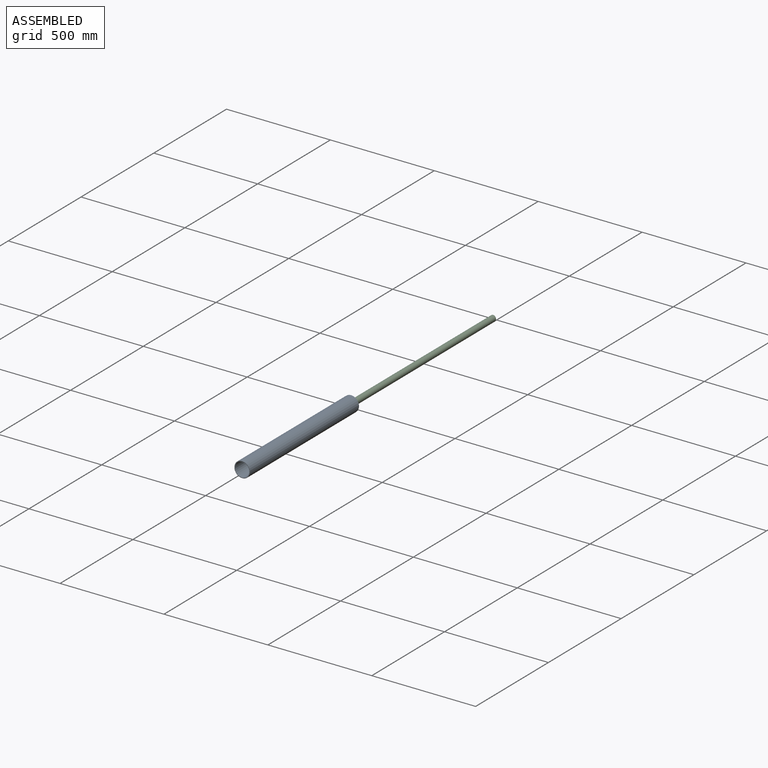
[diagram: assembled view]
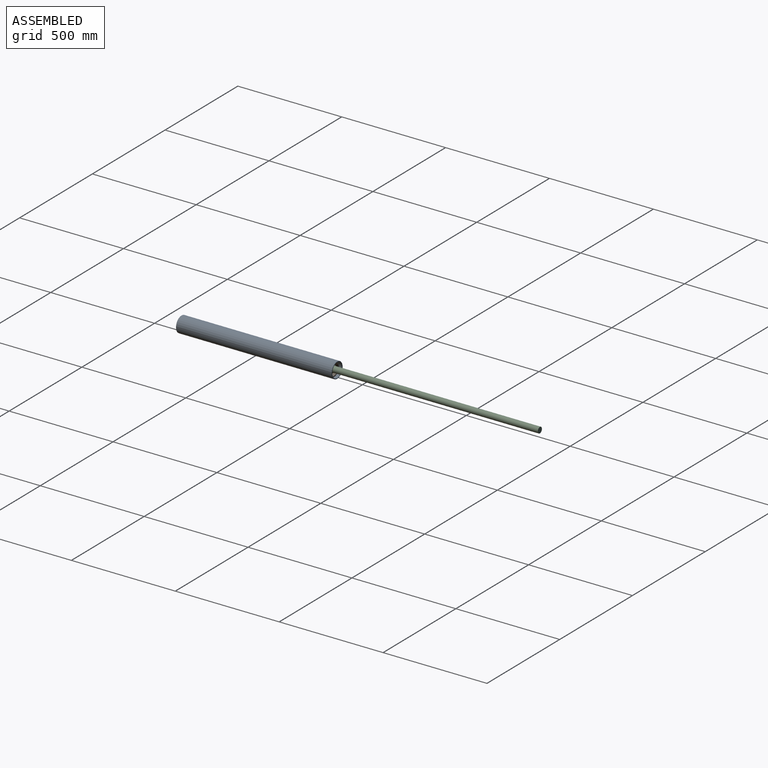
[diagram: assembled view, second angle]
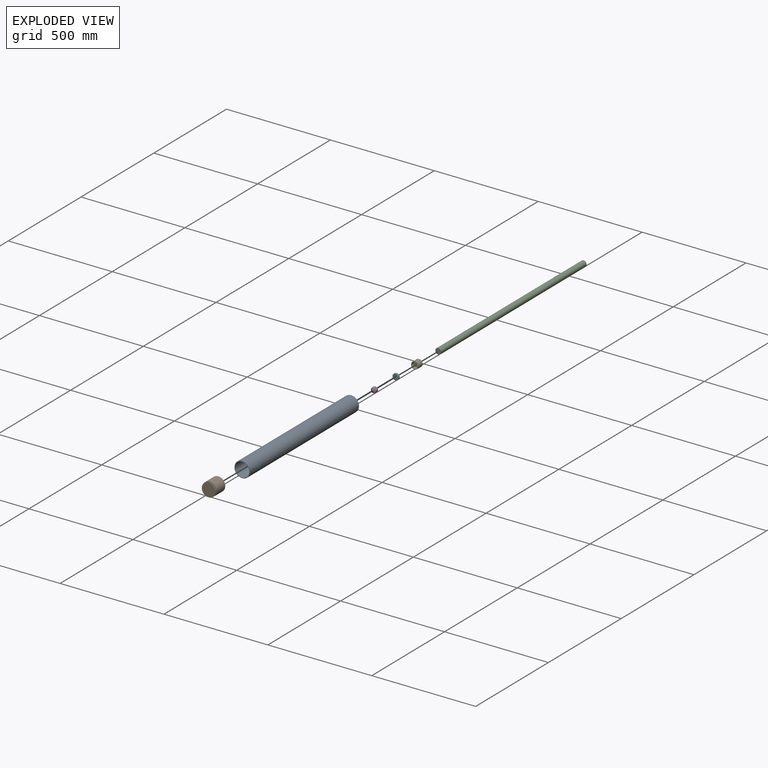
[diagram: exploded view]
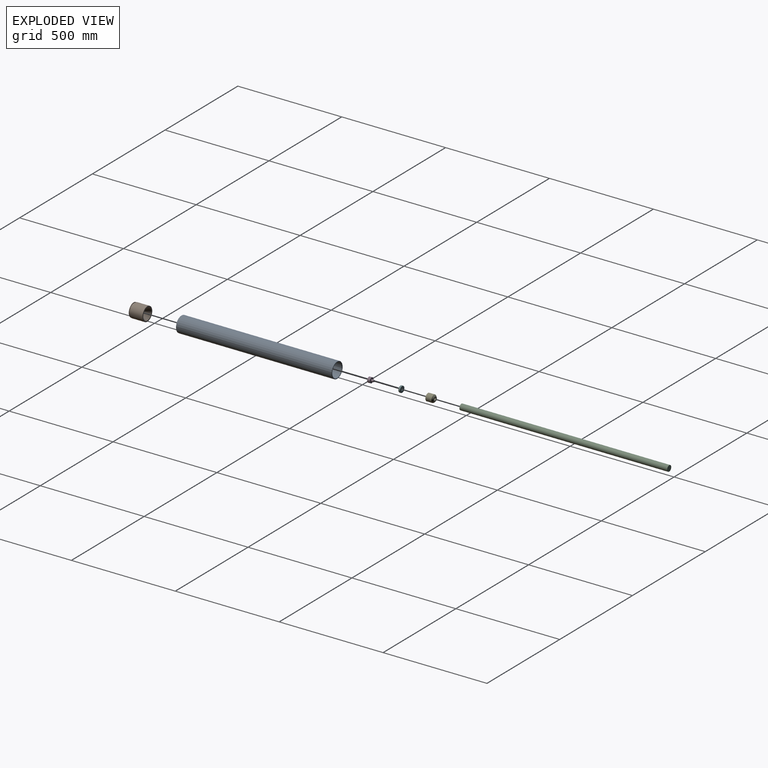
[diagram: exploded view, second angle]
ASSEMBLY  parts=6 mates=8
PART A: 8 faces, bbox 75.3x750x75.3 mm
  f0: cylinder r=33.7mm len=744mm, axis (0,1,0), area 157537mm2, adj f4,f5
  f1: cylinder r=37.65mm len=749mm, axis (0,1,0), area 177184.9mm2, adj f6,f7
  f2: plane 74.3x74.3mm, normal (0,-1,0), area 595.7mm2, adj f5,f7
  f3: plane 74.3x74.3mm, normal (0,1,0), area 595.7mm2, adj f4,f6
  f4: cone r=34.5mm half-angle=15deg, axis (0,1,0), area 665.5mm2, adj f0,f3
  f5: cone r=33.7mm half-angle=15deg, axis (0,-1,0), area 665.5mm2, adj f0,f2
  f6: cone r=37.65mm half-angle=45deg, axis (0,-1,0), area 166.2mm2, adj f1,f3
  f7: cone r=37.15mm half-angle=45deg, axis (0,1,0), area 166.2mm2, adj f1,f2
PART B: 10 faces, bbox 67x67x67 mm
  f0: plane 67x67mm, normal (0,1,0), area 973.9mm2, adj f3,f4
  f1: cone r=11.11mm half-angle=59deg, axis (0,1,0), area 452.4mm2, adj f2
  f2: cylinder r=11.11mm len=22.22mm, axis (0,-1,0), area 698.1mm2, adj f1,f3
  f3: cone r=28.5mm half-angle=30deg, axis (0,1,0), area 4328mm2, adj f0,f2
  f4: cylinder r=33.5mm len=67mm, axis (0,1,0), area 12629.2mm2, adj f0,f8
  f5: cylinder r=32.5mm len=65mm, axis (0,1,0), area 408.4mm2, adj f6,f9
  f6: plane 65x65mm, normal (0,1,0), area 472mm2, adj f5,f7
  f7: cylinder r=30.1mm len=60.2mm, axis (0,1,0), area 945.6mm2, adj f6,f8
  f8: plane 67x67mm, normal (0,-1,0), area 679.3mm2, adj f4,f7
  f9: plane 65x65mm, normal (0,-1,0), area 3318.3mm2, adj f5
PART C: 3 faces, bbox 28x1000x28 mm
  f0: cylinder r=14mm len=1000mm, axis (0,1,0), area 87964.6mm2, adj f1,f2
  f1: plane 28x28mm, normal (0,-1,0), area 615.8mm2, adj f0
  f2: plane 28x28mm, normal (0,1,0), area 615.8mm2, adj f0
PART D: 6 faces, bbox 31x25x25 mm
  f0: plane 10x10mm, normal (1,0,0), area 78.5mm2, adj f1
  f1: cylinder r=5mm len=11mm, axis (-1,0,0), area 345.6mm2, adj f0,f2
  f2: plane 25x25mm, normal (1,0,0), area 412.3mm2, adj f1,f3
  f3: cylinder r=12.5mm len=25mm, axis (-1,0,0), area 1051.7mm2, adj f2,f4
  f4: cone r=12.5mm half-angle=59deg, axis (1,0,0), area 564.4mm2, adj f3,f5
  f5: plane 3x3mm, normal (-1,0,0), area 7.1mm2, adj f4
PART E: 7 faces, bbox 35x35x35 mm
  f0: cylinder r=6mm len=20mm, axis (0,-1,0), area 754mm2, adj f1,f5
  f1: plane 23x23mm, normal (0,1,0), area 302.4mm2, adj f0,f6
  f2: cylinder r=17.5mm len=35mm, axis (0,-1,0), area 3188.7mm2, adj f3,f6
  f3: plane 35x35mm, normal (0,-1,0), area 255.3mm2, adj f2,f4
  f4: cylinder r=15mm len=30mm, axis (0,-1,0), area 1413.7mm2, adj f3,f5
  f5: plane 30x30mm, normal (0,-1,0), area 593.8mm2, adj f0,f4
  f6: cone r=17.5mm half-angle=45deg, axis (0,-1,0), area 773.1mm2, adj f1,f2
PART F: 8 faces, bbox 32.5x9x32.5 mm
  f0: cylinder r=5mm len=10mm, axis (0,1,0), area 219.9mm2, adj f4,f6
  f1: cylinder r=15mm len=30mm, axis (0,1,0), area 659.7mm2, adj f5,f7
  f2: plane 28x28mm, normal (0,-1,0), area 502.7mm2, adj f6,f7
  f3: plane 28x28mm, normal (0,1,0), area 502.7mm2, adj f4,f5
  f4: torus R=6mm, axis (0,-1,0), area 52.9mm2, adj f0,f3
  f5: torus R=14mm, axis (0,-1,0), area 144.5mm2, adj f1,f3
  f6: torus R=6mm, axis (0,-1,0), area 52.9mm2, adj f0,f2
  f7: torus R=14mm, axis (0,-1,0), area 144.5mm2, adj f1,f2
PLACE A rot(axis=(0.11,0.53,-0.84),0deg) t=(57.44,44.38,29.35)mm fixed
PLACE B rot(axis=(0.11,0.53,-0.84),0deg) t=(57.44,337.38,29.35)mm
PLACE C rot(axis=(0,1,0),2deg) t=(57.44,894.65,29.35)mm
PLACE D rot(axis=(0.02,0.02,1),90deg) t=(57.44,357.65,29.35)mm
PLACE E rot(axis=(0,1,0),2deg) t=(57.44,371.65,29.35)mm
PLACE F rot(axis=(0,1,0),2deg) t=(57.44,386.65,29.35)mm
MATE planar F.f1 <-> D.f1  axis (0,-1,0) through (57.44,377.65,29.35)mm
MATE slider E.f0 <-> F.f1  axis (0,-1,0) through (57.44,379.15,29.35)mm
MATE slider B.f1 <-> A.f1  axis (0,-1,0) through (57.44,344.38,29.35)mm
MATE planar E.f0 <-> F.f1  axis (0,-1,0) through (57.44,386.65,29.35)mm
MATE slider E.f0 <-> C.f0  axis (0,-1,0) through (57.44,406.65,29.35)mm
MATE slider D.f1 <-> F.f0  axis (0,-1,0) through (57.44,383.15,29.35)mm
MATE revolute D.f1 <-> B.f1  axis (0,1,0) through (57.44,364.26,29.35)mm
MATE planar E.f0 <-> C.f0  axis (0,1,0) through (57.44,406.65,29.35)mm
